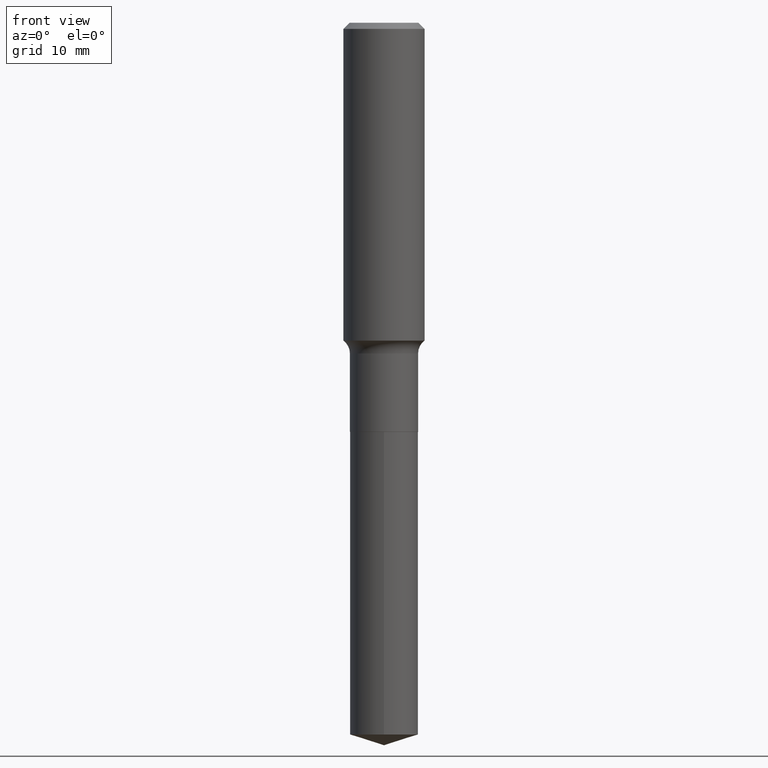
[diagram: clean part render]
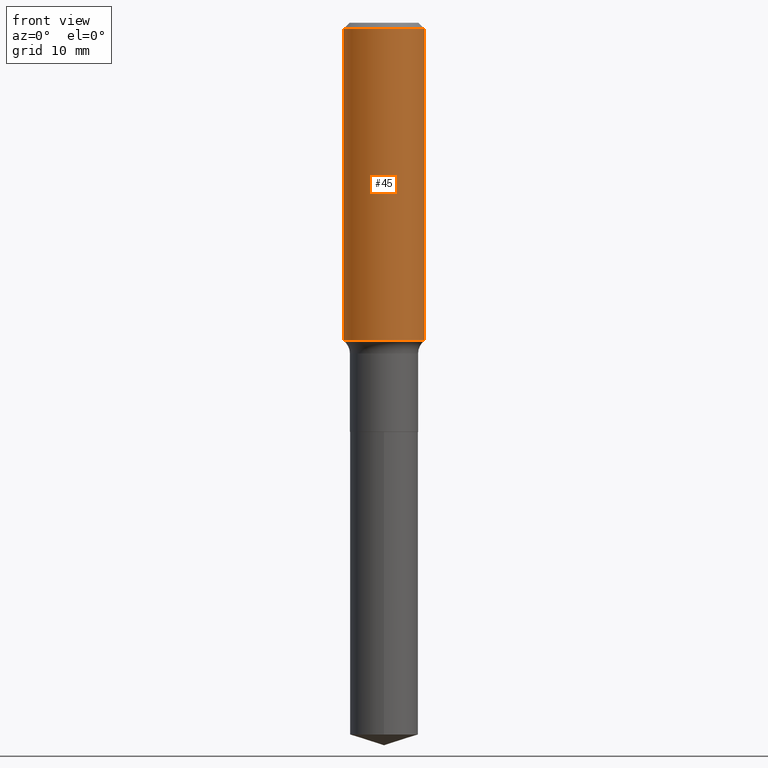
[diagram: same view with one face highlighted and labeled with its STEP entity id]
A machine part, front view. The second image highlights one B-rep face of the part: STEP entity #45.
In plain terms, the highlighted cylindrical surface (partial cylindrical patch) has radius 5 mm, axis along (-0, 0, 1).
Its self-contained STEP definition (entity closure, byte-faithful):
#1 = CARTESIAN_POINT ( 'NONE',  ( -0.1968500000000001082, 1.398703375343757985E-15, -9.682923725166787881E-30 ) ) ;
#6 = ORIENTED_EDGE ( 'NONE', *, *, #330, .F. ) ;
#41 = AXIS2_PLACEMENT_3D ( 'NONE', #270, #168, #79 ) ;
#45 = ADVANCED_FACE ( 'NONE', ( #425 ), #98, .T. ) ;
#78 = DIRECTION ( 'NONE',  ( 1.000000000000000000, -6.982962677686266711E-15, 0.000000000000000000 ) ) ;
#79 = DIRECTION ( 'NONE',  ( 1.000000000000000000, -6.982962677686266711E-15, 0.000000000000000000 ) ) ;
#83 = VERTEX_POINT ( 'NONE', #402 ) ;
#98 = CYLINDRICAL_SURFACE ( 'NONE', #414, 0.1968500000000001082 ) ;
#134 = VECTOR ( 'NONE', #376, 39.37007874015748143 ) ;
#157 = EDGE_CURVE ( 'NONE', #83, #417, #160, .T. ) ;
#160 = LINE ( 'NONE', #304, #134 ) ;
#166 = DIRECTION ( 'NONE',  ( 1.000000000000000000, -6.982962677686266711E-15, 4.876176775795935793E-29 ) ) ;
#168 = DIRECTION ( 'NONE',  ( -2.445468806185136597E-29, 3.491481338843145583E-15, 1.000000000000000000 ) ) ;
#180 = CARTESIAN_POINT ( 'NONE',  ( -0.1968500000000001915, -3.982633445293202995E-15, -1.541276122764555279 ) ) ;
#198 = VECTOR ( 'NONE', #309, 39.37007874015748143 ) ;
#208 = ORIENTED_EDGE ( 'NONE', *, *, #352, .F. ) ;
#251 = CARTESIAN_POINT ( 'NONE',  ( 0.000000000000000000, 0.000000000000000000, 0.000000000000000000 ) ) ;
#270 = CARTESIAN_POINT ( 'NONE',  ( 3.769142679938693418E-29, -5.381336820636961571E-15, -1.541276122764555279 ) ) ;
#291 = ORIENTED_EDGE ( 'NONE', *, *, #433, .T. ) ;
#292 = ORIENTED_EDGE ( 'NONE', *, *, #157, .T. ) ;
#304 = CARTESIAN_POINT ( 'NONE',  ( 0.1968500000000001082, -1.374596203102542397E-15, 9.598753983154305062E-30 ) ) ;
#309 = DIRECTION ( 'NONE',  ( -2.445468806185136877E-29, 3.491481338843145188E-15, 1.000000000000000000 ) ) ;
#311 = CIRCLE ( 'NONE', #41, 0.1968500000000001915 ) ;
#314 = CARTESIAN_POINT ( 'NONE',  ( 0.1968500000000000527, -1.477690918335233688E-15, -0.02952750000000021330 ) ) ;
#318 = AXIS2_PLACEMENT_3D ( 'NONE', #340, #487, #78 ) ;
#330 = EDGE_CURVE ( 'NONE', #474, #417, #461, .T. ) ;
#340 = CARTESIAN_POINT ( 'NONE',  ( 7.220858017463213864E-31, -1.030947152326917226E-16, -0.02952750000000021330 ) ) ;
#342 = LINE ( 'NONE', #1, #198 ) ;
#352 = EDGE_CURVE ( 'NONE', #385, #474, #342, .T. ) ;
#362 = EDGE_LOOP ( 'NONE', ( #208, #291, #292, #6 ) ) ;
#376 = DIRECTION ( 'NONE',  ( -2.445468806185136877E-29, 3.491481338843145188E-15, 1.000000000000000000 ) ) ;
#385 = VERTEX_POINT ( 'NONE', #180 ) ;
#392 = DIRECTION ( 'NONE',  ( -2.445468806185136597E-29, 3.491481338843145583E-15, 1.000000000000000000 ) ) ;
#401 = CARTESIAN_POINT ( 'NONE',  ( -0.1968500000000000527, -1.343512392591068446E-15, -0.02952750000000021330 ) ) ;
#402 = CARTESIAN_POINT ( 'NONE',  ( 0.1968500000000001915, -6.755933023739504757E-15, -1.541276122764555279 ) ) ;
#414 = AXIS2_PLACEMENT_3D ( 'NONE', #251, #392, #166 ) ;
#417 = VERTEX_POINT ( 'NONE', #314 ) ;
#425 = FACE_OUTER_BOUND ( 'NONE', #362, .T. ) ;
#433 = EDGE_CURVE ( 'NONE', #385, #83, #311, .T. ) ;
#461 = CIRCLE ( 'NONE', #318, 0.1968500000000000527 ) ;
#474 = VERTEX_POINT ( 'NONE', #401 ) ;
#487 = DIRECTION ( 'NONE',  ( -2.445468806185136597E-29, 3.491481338843145583E-15, 1.000000000000000000 ) ) ;